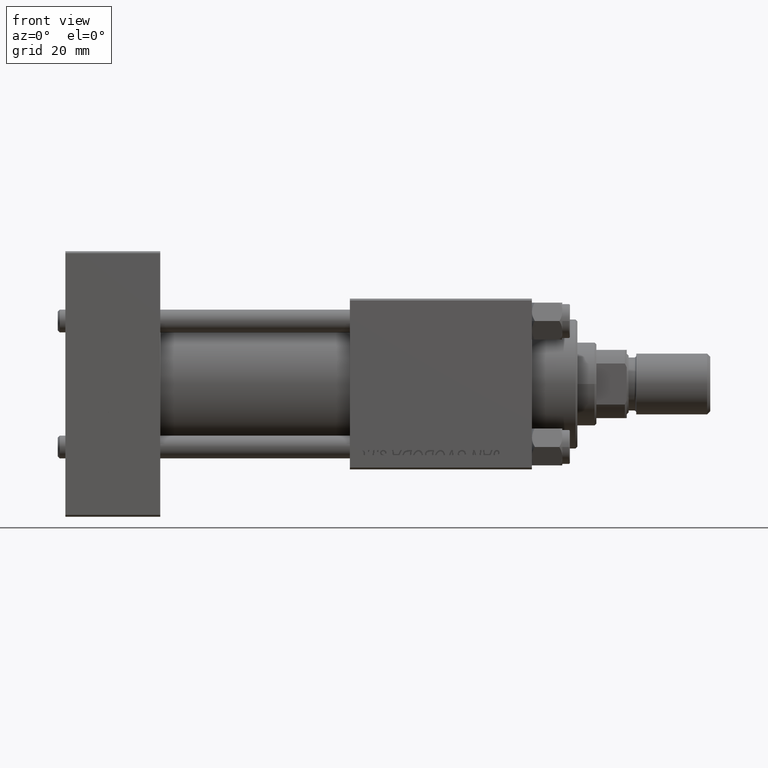
[diagram: clean part render]
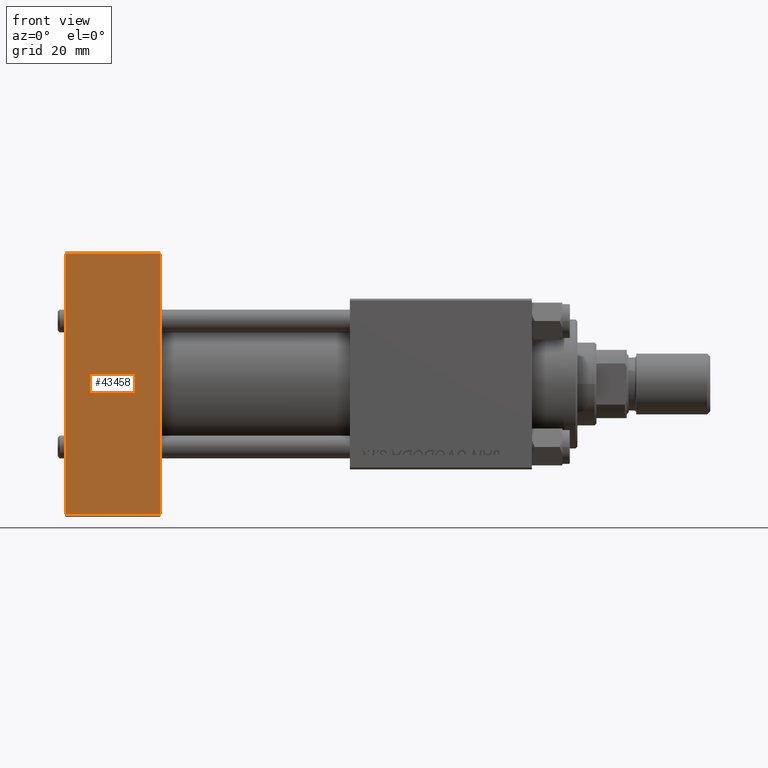
[diagram: same view with one face highlighted and labeled with its STEP entity id]
A machine part, front view. The second image highlights one B-rep face of the part: STEP entity #43458.
In plain terms, the highlighted planar face has unit normal (0, 1, 0).
Its self-contained STEP definition (entity closure, byte-faithful):
#2389 = ORIENTED_EDGE ( 'NONE', *, *, #27814, .T. ) ;
#6162 = VECTOR ( 'NONE', #31651, 1000.000000000000000 ) ;
#6270 = LINE ( 'NONE', #29573, #51953 ) ;
#6456 = ORIENTED_EDGE ( 'NONE', *, *, #43011, .T. ) ;
#6776 = VECTOR ( 'NONE', #40388, 1000.000000000000000 ) ;
#7004 = AXIS2_PLACEMENT_3D ( 'NONE', #15974, #20218, #40602 ) ;
#10657 = EDGE_CURVE ( 'NONE', #28585, #52262, #12326, .T. ) ;
#12061 = CARTESIAN_POINT ( 'NONE',  ( 25.00000000000000000, -22.49999999999999645, 35.00000000000000000 ) ) ;
#12326 = LINE ( 'NONE', #12061, #6776 ) ;
#12365 = LINE ( 'NONE', #44416, #34337 ) ;
#13031 = ORIENTED_EDGE ( 'NONE', *, *, #48428, .T. ) ;
#15974 = CARTESIAN_POINT ( 'NONE',  ( 25.00000000000000000, -22.49999999999999645, 35.00000000000000000 ) ) ;
#16012 = CARTESIAN_POINT ( 'NONE',  ( 25.00000000000000000, -22.49999999999999645, -34.50000000000000000 ) ) ;
#20218 = DIRECTION ( 'NONE',  ( -0.000000000000000000, 1.000000000000000000, 0.000000000000000000 ) ) ;
#22949 = LINE ( 'NONE', #47590, #6162 ) ;
#24101 = VERTEX_POINT ( 'NONE', #43912 ) ;
#24462 = EDGE_LOOP ( 'NONE', ( #13031, #6456, #28606, #2389 ) ) ;
#27814 = EDGE_CURVE ( 'NONE', #28585, #31231, #12365, .T. ) ;
#28585 = VERTEX_POINT ( 'NONE', #49342 ) ;
#28606 = ORIENTED_EDGE ( 'NONE', *, *, #10657, .F. ) ;
#29573 = CARTESIAN_POINT ( 'NONE',  ( 0.000000000000000000, -22.49999999999999645, 35.00000000000000000 ) ) ;
#31231 = VERTEX_POINT ( 'NONE', #36336 ) ;
#31651 = DIRECTION ( 'NONE',  ( 1.000000000000000000, 0.000000000000000000, 0.000000000000000000 ) ) ;
#33174 = PLANE ( 'NONE',  #7004 ) ;
#34337 = VECTOR ( 'NONE', #49194, 1000.000000000000000 ) ;
#36336 = CARTESIAN_POINT ( 'NONE',  ( 0.000000000000000000, -22.49999999999999645, 34.50000000000000000 ) ) ;
#37153 = FACE_OUTER_BOUND ( 'NONE', #24462, .T. ) ;
#38330 = DIRECTION ( 'NONE',  ( 0.000000000000000000, 0.000000000000000000, -1.000000000000000000 ) ) ;
#40388 = DIRECTION ( 'NONE',  ( 0.000000000000000000, 0.000000000000000000, -1.000000000000000000 ) ) ;
#40602 = DIRECTION ( 'NONE',  ( 0.000000000000000000, -0.000000000000000000, 1.000000000000000000 ) ) ;
#43011 = EDGE_CURVE ( 'NONE', #24101, #52262, #22949, .T. ) ;
#43458 = ADVANCED_FACE ( 'NONE', ( #37153 ), #33174, .F. ) ;
#43912 = CARTESIAN_POINT ( 'NONE',  ( 0.000000000000000000, -22.49999999999999645, -34.50000000000000000 ) ) ;
#44416 = CARTESIAN_POINT ( 'NONE',  ( 25.00000000000000000, -22.49999999999999645, 34.50000000000000000 ) ) ;
#47590 = CARTESIAN_POINT ( 'NONE',  ( 25.00000000000000000, -22.49999999999999645, -34.50000000000000000 ) ) ;
#48428 = EDGE_CURVE ( 'NONE', #31231, #24101, #6270, .T. ) ;
#49194 = DIRECTION ( 'NONE',  ( -1.000000000000000000, 0.000000000000000000, 0.000000000000000000 ) ) ;
#49342 = CARTESIAN_POINT ( 'NONE',  ( 25.00000000000000000, -22.49999999999999645, 34.50000000000000000 ) ) ;
#51953 = VECTOR ( 'NONE', #38330, 1000.000000000000000 ) ;
#52262 = VERTEX_POINT ( 'NONE', #16012 ) ;